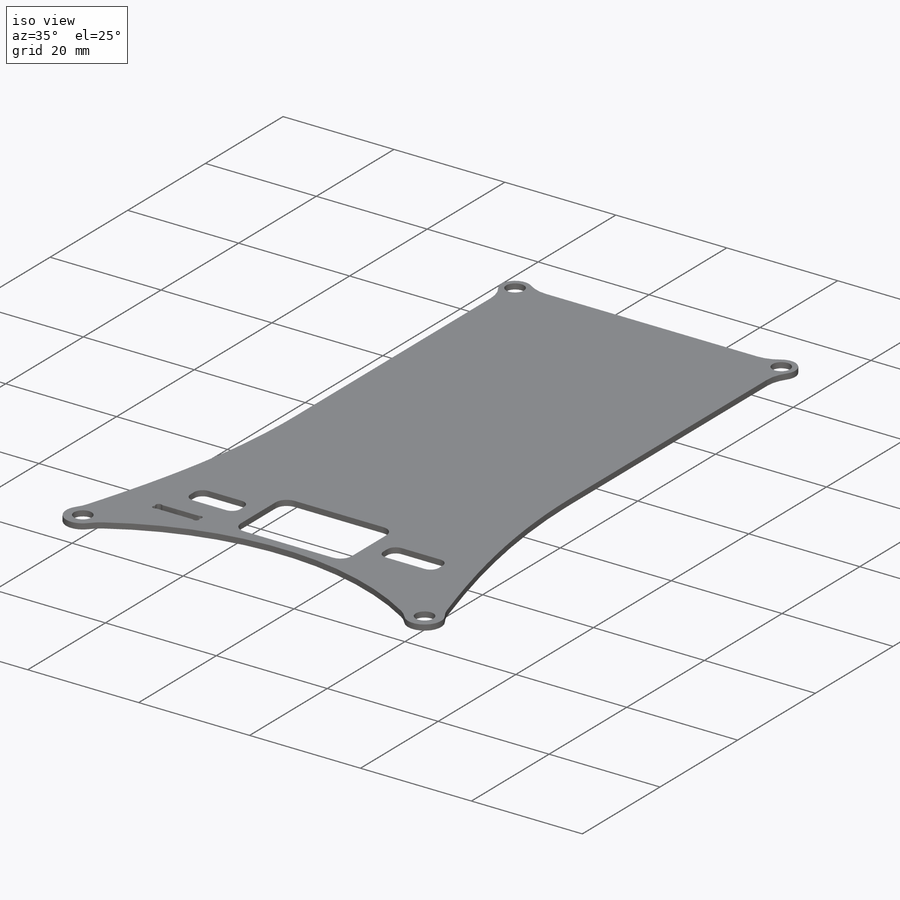
[diagram: iso view]
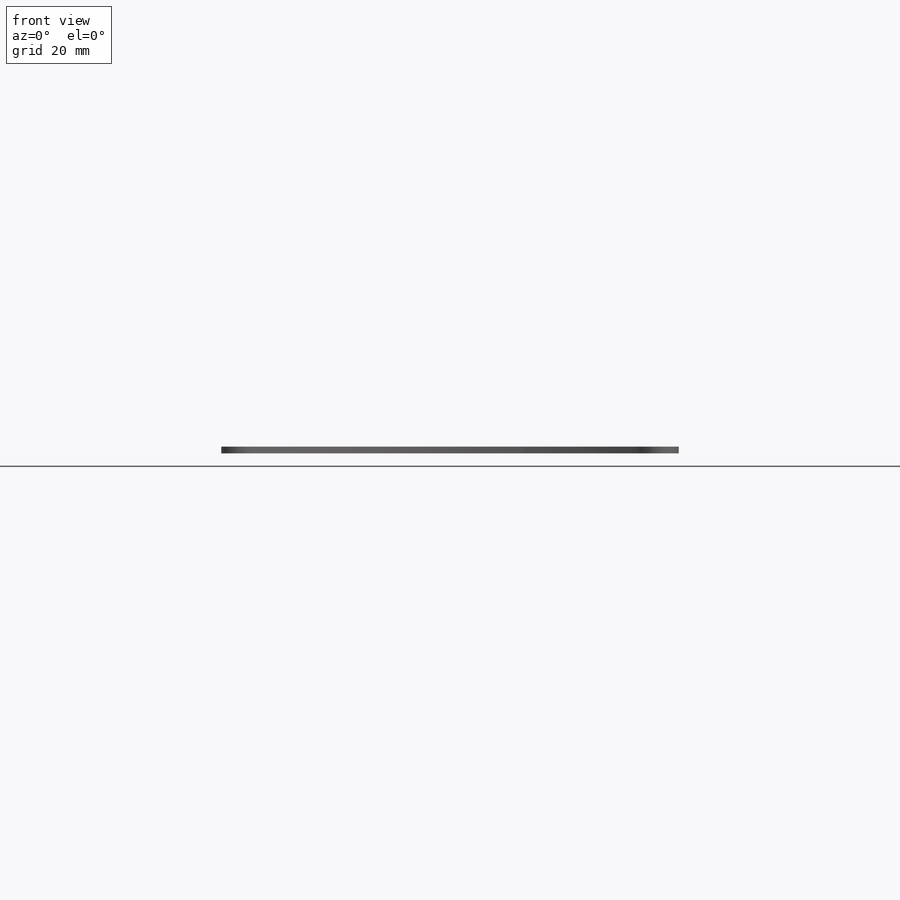
[diagram: front view]
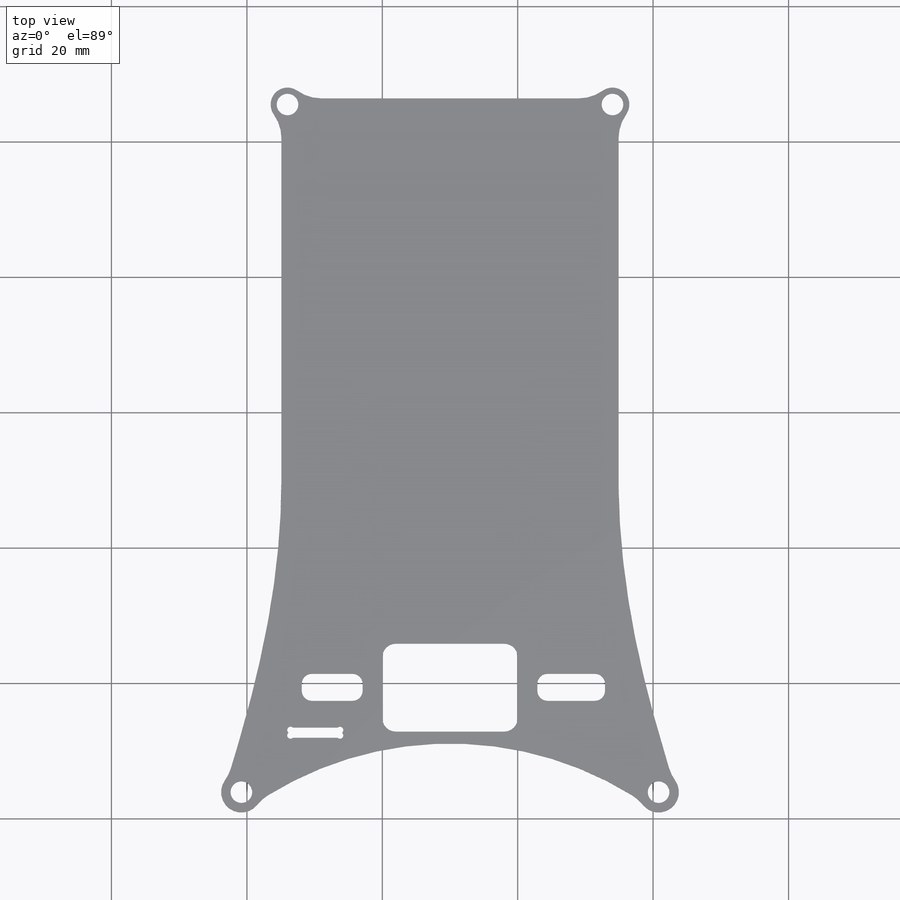
[diagram: top view]
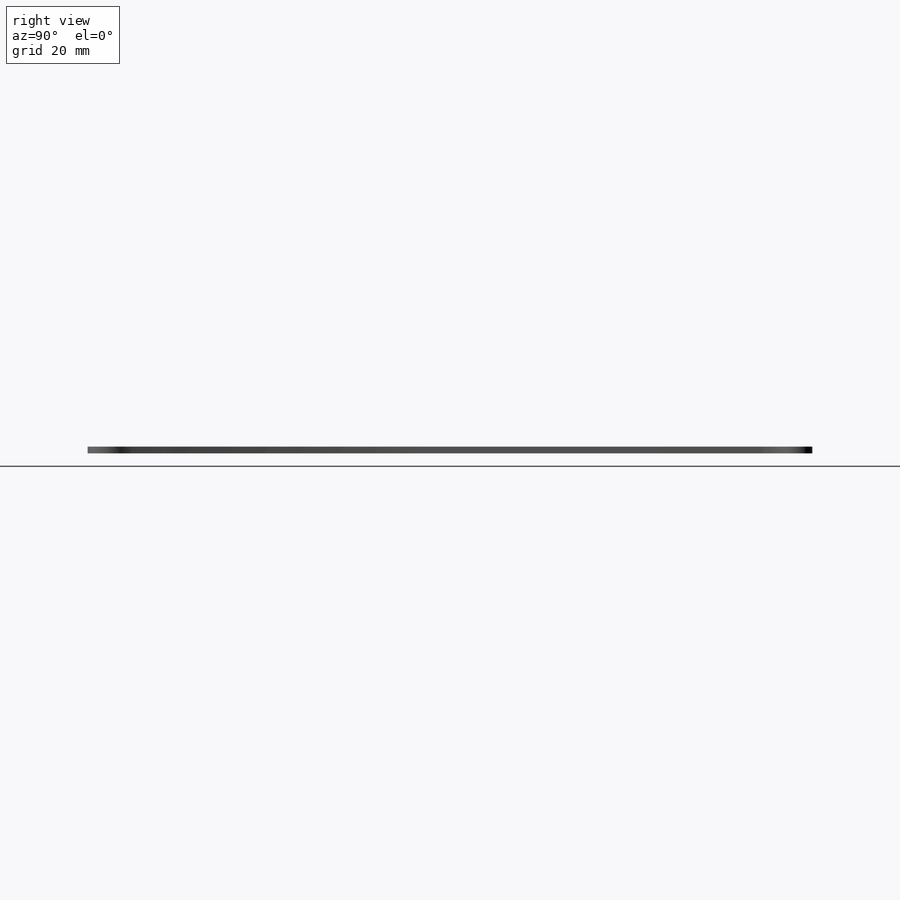
[diagram: right view]
SOLIDWORKS PART (.sldprt)
format: sldprt  version: not decoded by parser v0  size: 803,328 bytes
history: native  units: mm
features: sketch x8, plane x3, fillet x3, cut_extrude x3, material x1, extrude x1, hole x1 (+8 scaffold rows collapsed)
feature tree (28):
  scaffold x8  (default folders/planes/origin — collapsed)
  material  "3.1355 (EN-AW 2024)"
  plane  "Спереди"
  plane  "Сверху"
  plane  "Справа"
  sketch  "Эскиз2"  dims[D1=5.0mm D2=6.0mm D3=1.0mm]
  extrude  "Бобышка-Вытянуть1"  [1 undecoded]
  fillet  "Скругление1"  Radius=6mm
  hole  "Отверстие с зазором M31"  [1 undecoded]
  sketch  "Эскиз4"
  sketch  "Эскиз3"  dims[hole-wizard template sketch: 46 standard entries collapsed; hole parameters kept: c15.Диаметр отверстия=3.2mm c15.Глубина отверстия=0.999mm c15.D3=~14.816244mm c15.Угол заточки сверла=118.0deg]
  sketch  "Эскиз5"  dims[D1=13.0mm D2=20.0mm]
  cut_extrude  "Вырез-Вытянуть2"  [1 undecoded]
  fillet  "Скругление2"  Radius=2mm
  sketch  "Эскиз6"  dims[c1.D4=1.0mm c1.D2=8.0mm c2.D2=45.0deg c2.D3=8.0mm c3.D3=45.0deg c3.D2=~6.625797mm c4.D2=45.0deg c4.D1=0.0mm]
  cut_extrude  "Вырез-Вытянуть3"  [1 undecoded]
  sketch  "Эскиз7"  dims[D1=10.0mm D2=4.0mm D3=85.0mm D4=2.0mm D5=9.0mm D6=4.0mm D7=3.0mm]
  cut_extrude  "Вырез-Вытянуть4"  [1 undecoded]
  fillet  "Скругление3"  Radius=1.5mm
  sketch  "Эскиз8"
  sketch  "Эскиз9"  dims[D1=0.0mm D2=0.0mm D3=0.0mm]
decode coverage: 9 of 16 modeling features carry decoded parameters
note: ~ marks probable driven/reference dimensions
note: 5 parameter values undecoded
summary: no parameter record found for 5 features
note: suppression state not decoded; provenance and decode notes live in map.json
